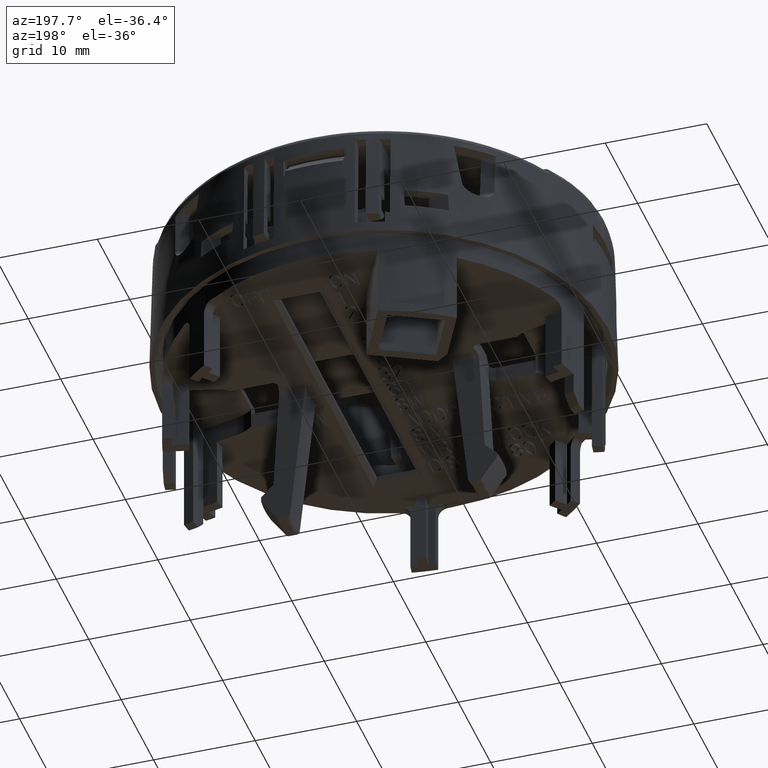
[diagram: clean part render]
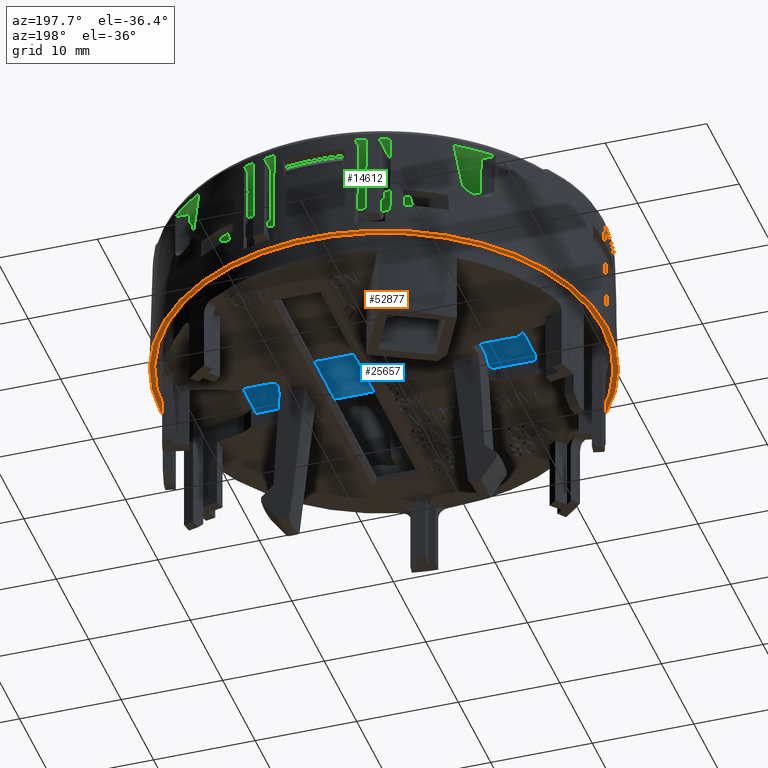
[diagram: same view with three faces highlighted in distinct colors, each labeled with its STEP entity id]
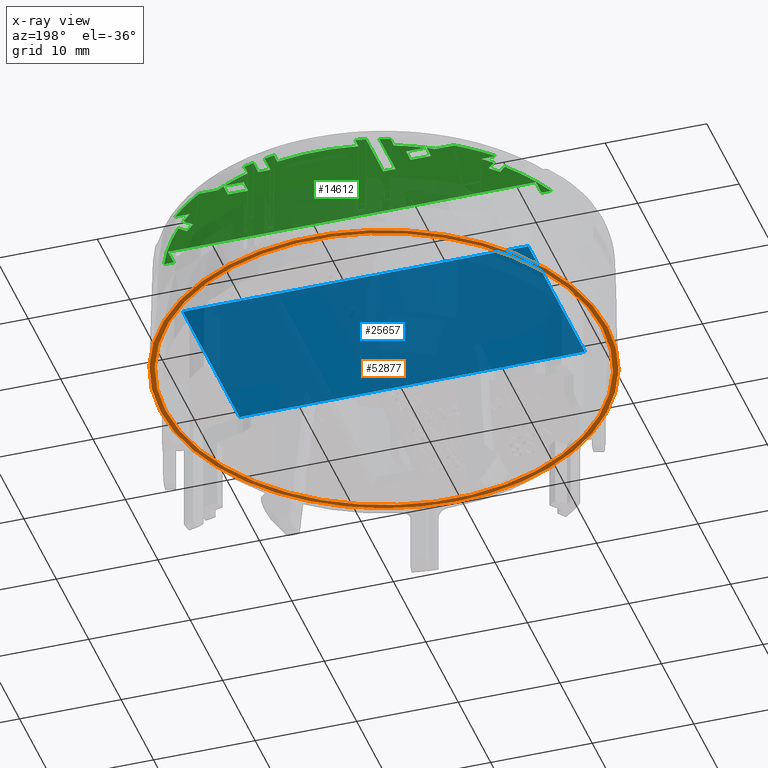
[diagram: x-ray of the same camera — body ghosted, the three highlighted faces saturated]
A machine part, auxiliary view with three faces highlighted in distinct colors.
The next image is the same camera in x-ray (body ghosted, the three faces saturated) — at least one of them is partly hidden behind the body in this view.
Their STEP definitions:

[orange] entity #52877 — the highlighted planar face has unit normal (0, -0, 1).
#286 = DIRECTION ( 'NONE',  ( 0.000000000000000000, 1.000000000000000000, 0.000000000000000000 ) ) ;
#492 = DIRECTION ( 'NONE',  ( -0.000000000000000000, -0.000000000000000000, 1.000000000000000000 ) ) ;
#3705 = DIRECTION ( 'NONE',  ( 0.000000000000000000, -1.000000000000000000, 0.000000000000000000 ) ) ;
#3961 = EDGE_CURVE ( 'NONE', #68883, #33228, #6949, .T. ) ;
#6657 = AXIS2_PLACEMENT_3D ( 'NONE', #70325, #10948, #286 ) ;
#6949 = CIRCLE ( 'NONE', #25093, 0.8661417322832716259 ) ;
#9859 = CARTESIAN_POINT ( 'NONE',  ( -0.08858267716535432601, -0.8661417322832716259, -0.1181102362205163486 ) ) ;
#10948 = DIRECTION ( 'NONE',  ( 0.000000000000000000, -0.000000000000000000, 1.000000000000000000 ) ) ;
#13177 = CARTESIAN_POINT ( 'NONE',  ( -0.08858267716535432601, 0.000000000000000000, -0.1181102362205163486 ) ) ;
#13220 = EDGE_CURVE ( 'NONE', #33228, #68167, #42900, .T. ) ;
#20904 = EDGE_LOOP ( 'NONE', ( #55807, #23041, #42482 ) ) ;
#21908 = VERTEX_POINT ( 'NONE', #28593 ) ;
#22014 = CARTESIAN_POINT ( 'NONE',  ( -0.08858267716535432601, 0.000000000000000000, -0.1181102362205163486 ) ) ;
#23041 = ORIENTED_EDGE ( 'NONE', *, *, #13220, .F. ) ;
#25093 = AXIS2_PLACEMENT_3D ( 'NONE', #13177, #492, #48840 ) ;
#27401 = AXIS2_PLACEMENT_3D ( 'NONE', #57027, #29309, #3705 ) ;
#28593 = CARTESIAN_POINT ( 'NONE',  ( 0.7578604931404487877, 5.770123354250118842E-17, -0.1181102362205771750 ) ) ;
#28746 = DIRECTION ( 'NONE',  ( 0.000000000000000000, -1.000000000000000000, 0.000000000000000000 ) ) ;
#29309 = DIRECTION ( 'NONE',  ( -0.000000000000000000, -0.000000000000000000, 1.000000000000000000 ) ) ;
#32152 = CARTESIAN_POINT ( 'NONE',  ( -0.08858267716535432601, 9.561467977824920278E-16, -0.1181102362205773693 ) ) ;
#32790 = ORIENTED_EDGE ( 'NONE', *, *, #59317, .T. ) ;
#33228 = VERTEX_POINT ( 'NONE', #9859 ) ;
#33619 = VERTEX_POINT ( 'NONE', #48143 ) ;
#36768 = CARTESIAN_POINT ( 'NONE',  ( -0.9547244094487539190, -1.325897125060816772E-16, -0.1181102362205141698 ) ) ;
#37472 = AXIS2_PLACEMENT_3D ( 'NONE', #64956, #37921, #59609 ) ;
#37614 = CIRCLE ( 'NONE', #27401, 0.8661417322835275323 ) ;
#37921 = DIRECTION ( 'NONE',  ( -1.008576273007973987E-17, -0.000000000000000000, 1.000000000000000000 ) ) ;
#39750 = EDGE_CURVE ( 'NONE', #68167, #68883, #37614, .T. ) ;
#39919 = CARTESIAN_POINT ( 'NONE',  ( 0.7775590551180452392, 1.660064624058092648E-12, -0.1181102362205163486 ) ) ;
#42235 = FACE_BOUND ( 'NONE', #51987, .T. ) ;
#42482 = ORIENTED_EDGE ( 'NONE', *, *, #3961, .F. ) ;
#42586 = FACE_OUTER_BOUND ( 'NONE', #20904, .T. ) ;
#42900 = CIRCLE ( 'NONE', #45125, 0.8661417322832716259 ) ;
#45125 = AXIS2_PLACEMENT_3D ( 'NONE', #22014, #49395, #28746 ) ;
#47921 = PLANE ( 'NONE',  #6657 ) ;
#48143 = CARTESIAN_POINT ( 'NONE',  ( -0.9350258474711574674, 6.200842129751810564E-17, -0.1181102362205771750 ) ) ;
#48840 = DIRECTION ( 'NONE',  ( 0.000000000000000000, -1.000000000000000000, 0.000000000000000000 ) ) ;
#49395 = DIRECTION ( 'NONE',  ( -0.000000000000000000, -0.000000000000000000, 1.000000000000000000 ) ) ;
#50865 = AXIS2_PLACEMENT_3D ( 'NONE', #32152, #53844, #52795 ) ;
#51987 = EDGE_LOOP ( 'NONE', ( #32790, #68512 ) ) ;
#52140 = EDGE_CURVE ( 'NONE', #21908, #33619, #59931, .T. ) ;
#52795 = DIRECTION ( 'NONE',  ( 1.000000000000000000, 0.000000000000000000, 0.000000000000000000 ) ) ;
#52877 = ADVANCED_FACE ( 'NONE', ( #42235, #42586 ), #47921, .F. ) ;
#53844 = DIRECTION ( 'NONE',  ( -1.008576273007973987E-17, -0.000000000000000000, 1.000000000000000000 ) ) ;
#55807 = ORIENTED_EDGE ( 'NONE', *, *, #39750, .F. ) ;
#57027 = CARTESIAN_POINT ( 'NONE',  ( -0.08858267716535432601, 0.000000000000000000, -0.1181102362205118245 ) ) ;
#59317 = EDGE_CURVE ( 'NONE', #33619, #21908, #67014, .T. ) ;
#59609 = DIRECTION ( 'NONE',  ( 1.000000000000000000, 8.881784197001251337E-16, 0.000000000000000000 ) ) ;
#59931 = CIRCLE ( 'NONE', #50865, 0.8464431703058030720 ) ;
#64956 = CARTESIAN_POINT ( 'NONE',  ( -0.08858267716535432601, 6.829619984160648185E-16, -0.1181102362205769807 ) ) ;
#67014 = CIRCLE ( 'NONE', #37472, 0.8464431703058030720 ) ;
#68167 = VERTEX_POINT ( 'NONE', #39919 ) ;
#68512 = ORIENTED_EDGE ( 'NONE', *, *, #52140, .T. ) ;
#68883 = VERTEX_POINT ( 'NONE', #36768 ) ;
#70325 = CARTESIAN_POINT ( 'NONE',  ( -0.08858267716535432601, 0.000000000000000000, -0.1181102362204724532 ) ) ;

[blue] entity #25657 — the highlighted planar face has unit normal (0, -0, 1).
#1650 = VECTOR ( 'NONE', #39094, 39.37007874015748143 ) ;
#2150 = DIRECTION ( 'NONE',  ( 0.000000000000000000, 1.000000000000000000, 0.000000000000000000 ) ) ;
#2349 = EDGE_LOOP ( 'NONE', ( #28782, #24630, #31079, #49423 ) ) ;
#7000 = LINE ( 'NONE', #22641, #7598 ) ;
#7598 = VECTOR ( 'NONE', #28663, 39.37007874015748143 ) ;
#10349 = DIRECTION ( 'NONE',  ( -0.000000000000000000, -1.000000000000000000, -0.000000000000000000 ) ) ;
#12139 = VECTOR ( 'NONE', #10349, 39.37007874015748143 ) ;
#13997 = CARTESIAN_POINT ( 'NONE',  ( -0.7578740157480314821, -0.3444881889763780070, 0.05364173228346456879 ) ) ;
#14197 = EDGE_CURVE ( 'NONE', #29340, #25083, #59388, .T. ) ;
#20486 = CARTESIAN_POINT ( 'NONE',  ( -0.7578740157480314821, -0.3444881889763780070, 0.05364173228346456879 ) ) ;
#22641 = CARTESIAN_POINT ( 'NONE',  ( 0.5807086614173228023, 0.3444881889763780070, 0.05364173228346456879 ) ) ;
#22945 = VERTEX_POINT ( 'NONE', #20486 ) ;
#24138 = FACE_OUTER_BOUND ( 'NONE', #2349, .T. ) ;
#24319 = CARTESIAN_POINT ( 'NONE',  ( 0.5807086614173228023, 0.3444881889763780070, 0.05364173228346456879 ) ) ;
#24630 = ORIENTED_EDGE ( 'NONE', *, *, #27646, .T. ) ;
#25083 = VERTEX_POINT ( 'NONE', #49849 ) ;
#25657 = ADVANCED_FACE ( 'NONE', ( #24138 ), #50831, .F. ) ;
#26119 = CARTESIAN_POINT ( 'NONE',  ( -0.7578740157480314821, 0.3444881889763780070, 0.05364173228346456879 ) ) ;
#27646 = EDGE_CURVE ( 'NONE', #59612, #29340, #7000, .T. ) ;
#28663 = DIRECTION ( 'NONE',  ( 1.000000000000000000, -0.000000000000000000, -0.000000000000000000 ) ) ;
#28782 = ORIENTED_EDGE ( 'NONE', *, *, #45836, .T. ) ;
#29340 = VERTEX_POINT ( 'NONE', #24319 ) ;
#31079 = ORIENTED_EDGE ( 'NONE', *, *, #14197, .T. ) ;
#32710 = CARTESIAN_POINT ( 'NONE',  ( 0.5807086614173228023, -0.3444881889763780070, 0.05364173228346456879 ) ) ;
#33755 = CARTESIAN_POINT ( 'NONE',  ( -0.7578740157480314821, 0.3444881889763780070, 0.05364173228346456879 ) ) ;
#39094 = DIRECTION ( 'NONE',  ( -0.000000000000000000, 1.000000000000000000, -0.000000000000000000 ) ) ;
#43252 = EDGE_CURVE ( 'NONE', #25083, #22945, #63046, .T. ) ;
#45836 = EDGE_CURVE ( 'NONE', #22945, #59612, #55786, .T. ) ;
#45839 = CARTESIAN_POINT ( 'NONE',  ( -0.08858267716535432601, 0.000000000000000000, 0.05364173228346456879 ) ) ;
#49339 = AXIS2_PLACEMENT_3D ( 'NONE', #45839, #67526, #2150 ) ;
#49423 = ORIENTED_EDGE ( 'NONE', *, *, #43252, .T. ) ;
#49849 = CARTESIAN_POINT ( 'NONE',  ( 0.5807086614173228023, -0.3444881889763780070, 0.05364173228346456879 ) ) ;
#50831 = PLANE ( 'NONE',  #49339 ) ;
#51369 = VECTOR ( 'NONE', #52363, 39.37007874015748143 ) ;
#52363 = DIRECTION ( 'NONE',  ( -1.000000000000000000, -0.000000000000000000, -0.000000000000000000 ) ) ;
#55786 = LINE ( 'NONE', #33755, #1650 ) ;
#59388 = LINE ( 'NONE', #32710, #12139 ) ;
#59612 = VERTEX_POINT ( 'NONE', #26119 ) ;
#63046 = LINE ( 'NONE', #13997, #51369 ) ;
#67526 = DIRECTION ( 'NONE',  ( 0.000000000000000000, -0.000000000000000000, 1.000000000000000000 ) ) ;

[green] entity #14612 — the highlighted planar face has unit normal (0, -0, 1).
#336 = EDGE_CURVE ( 'NONE', #6978, #31105, #15550, .T. ) ;
#395 = ORIENTED_EDGE ( 'NONE', *, *, #57176, .T. ) ;
#473 = EDGE_CURVE ( 'NONE', #21197, #48458, #21895, .T. ) ;
#518 = ORIENTED_EDGE ( 'NONE', *, *, #10137, .F. ) ;
#798 = DIRECTION ( 'NONE',  ( 0.7071067811915614509, -0.7071067811815334725, 0.000000000000000000 ) ) ;
#879 = AXIS2_PLACEMENT_3D ( 'NONE', #2805, #40120, #61802 ) ;
#949 = CARTESIAN_POINT ( 'NONE',  ( 0.1082677165354330728, 0.8320383715364940702, 0.3070866141732283561 ) ) ;
#1024 = DIRECTION ( 'NONE',  ( -0.7071067811865474617, -0.7071067811865474617, 0.000000000000000000 ) ) ;
#1190 = ORIENTED_EDGE ( 'NONE', *, *, #33298, .F. ) ;
#1203 = EDGE_CURVE ( 'NONE', #21194, #6806, #22801, .T. ) ;
#1441 = CARTESIAN_POINT ( 'NONE',  ( 0.5743812763314960490, 0.3188976377952755792, 0.3070866141732283561 ) ) ;
#1689 = EDGE_CURVE ( 'NONE', #6806, #65018, #8974, .T. ) ;
#1809 = CARTESIAN_POINT ( 'NONE',  ( -0.2854330708661417804, 0.000000000000000000, 0.3070866141732283561 ) ) ;
#1854 = CIRCLE ( 'NONE', #50653, 0.8550075609076555061 ) ;
#1857 = ORIENTED_EDGE ( 'NONE', *, *, #3274, .T. ) ;
#2064 = CARTESIAN_POINT ( 'NONE',  ( 0.1082677165354330728, 0.7598425196850394636, 0.3070866141732283561 ) ) ;
#2232 = LINE ( 'NONE', #45566, #27849 ) ;
#2496 = VECTOR ( 'NONE', #1024, 39.37007874015748854 ) ;
#2568 = DIRECTION ( 'NONE',  ( 0.000000000000000000, -1.000000000000000000, 0.000000000000000000 ) ) ;
#2805 = CARTESIAN_POINT ( 'NONE',  ( -0.08858267716535432601, 0.000000000000000000, 0.3070866141732283561 ) ) ;
#3012 = DIRECTION ( 'NONE',  ( 0.000000000000000000, -1.000000000000000000, 0.000000000000000000 ) ) ;
#3274 = EDGE_CURVE ( 'NONE', #13510, #9500, #51349, .T. ) ;
#3593 = CARTESIAN_POINT ( 'NONE',  ( 0.3051074005998295480, 0.7143615461695256297, 0.3070518012937701324 ) ) ;
#3649 = DIRECTION ( 'NONE',  ( 0.000000000000000000, -1.000000000000000000, 0.000000000000000000 ) ) ;
#4083 = VERTEX_POINT ( 'NONE', #43494 ) ;
#4294 = ORIENTED_EDGE ( 'NONE', *, *, #50623, .F. ) ;
#4383 = EDGE_CURVE ( 'NONE', #56048, #64487, #23734, .T. ) ;
#4543 = CARTESIAN_POINT ( 'NONE',  ( -0.6620629800173228885, 0.5233703734767716220, 0.3070866141732283561 ) ) ;
#4569 = CARTESIAN_POINT ( 'NONE',  ( -0.4035433070866141780, 0.7159383755826771445, 0.3070866141732283561 ) ) ;
#4617 = VERTEX_POINT ( 'NONE', #42536 ) ;
#4794 = VERTEX_POINT ( 'NONE', #949 ) ;
#4841 = VECTOR ( 'NONE', #12808, 39.37007874015748143 ) ;
#5346 = DIRECTION ( 'NONE',  ( -1.000000000000000000, 0.000000000000000000, 0.000000000000000000 ) ) ;
#5789 = VERTEX_POINT ( 'NONE', #51969 ) ;
#5927 = VERTEX_POINT ( 'NONE', #64741 ) ;
#5980 = DIRECTION ( 'NONE',  ( 0.000000000000000000, -1.000000000000000000, 0.000000000000000000 ) ) ;
#6022 = VERTEX_POINT ( 'NONE', #65783 ) ;
#6066 = CARTESIAN_POINT ( 'NONE',  ( -0.8011811023622047445, 0.3877952755905511584, 0.3070866141732283561 ) ) ;
#6369 = VERTEX_POINT ( 'NONE', #22913 ) ;
#6665 = CARTESIAN_POINT ( 'NONE',  ( -0.4035433070866141780, 0.6614931493807088003, 0.3070866141732283561 ) ) ;
#6678 = DIRECTION ( 'NONE',  ( -1.000000000000000000, 0.000000000000000000, 0.000000000000000000 ) ) ;
#6806 = VERTEX_POINT ( 'NONE', #17168 ) ;
#6978 = VERTEX_POINT ( 'NONE', #63353 ) ;
#7017 = VECTOR ( 'NONE', #31441, 39.37007874015748143 ) ;
#7230 = EDGE_CURVE ( 'NONE', #30412, #6978, #28779, .T. ) ;
#7481 = LINE ( 'NONE', #1441, #4841 ) ;
#7970 = CARTESIAN_POINT ( 'NONE',  ( 0.1082677165354330728, 0.7598425196850394636, 0.3070866141732283561 ) ) ;
#8246 = VECTOR ( 'NONE', #5346, 39.37007874015748143 ) ;
#8775 = CARTESIAN_POINT ( 'NONE',  ( 0.4767333044831567057, 0.5879288461062992521, 0.3070866141729688970 ) ) ;
#8926 = VECTOR ( 'NONE', #44501, 39.37007874015748143 ) ;
#8970 = DIRECTION ( 'NONE',  ( 0.000000000000000000, -1.000000000000000000, 0.000000000000000000 ) ) ;
#8974 = CIRCLE ( 'NONE', #31638, 0.8550075609076535077 ) ;
#8983 = ORIENTED_EDGE ( 'NONE', *, *, #10215, .T. ) ;
#9112 = VECTOR ( 'NONE', #55235, 39.37007874015748143 ) ;
#9500 = VERTEX_POINT ( 'NONE', #29337 ) ;
#9611 = DIRECTION ( 'NONE',  ( 0.000000000000000000, 1.000000000000000000, 0.000000000000000000 ) ) ;
#9612 = LINE ( 'NONE', #41958, #8246 ) ;
#9948 = ORIENTED_EDGE ( 'NONE', *, *, #39795, .F. ) ;
#10080 = ORIENTED_EDGE ( 'NONE', *, *, #56813, .T. ) ;
#10137 = EDGE_CURVE ( 'NONE', #34738, #28949, #20674, .T. ) ;
#10188 = CIRCLE ( 'NONE', #18155, 0.8156239863999251716 ) ;
#10215 = EDGE_CURVE ( 'NONE', #37238, #6022, #52821, .T. ) ;
#10696 = VERTEX_POINT ( 'NONE', #29683 ) ;
#10825 = AXIS2_PLACEMENT_3D ( 'NONE', #17720, #26705, #70108 ) ;
#10831 = EDGE_CURVE ( 'NONE', #61581, #47606, #25394, .T. ) ;
#11091 = CARTESIAN_POINT ( 'NONE',  ( -0.08858267716535432601, 0.000000000000000000, 0.3070866141732283561 ) ) ;
#11198 = LINE ( 'NONE', #32856, #20706 ) ;
#11275 = VERTEX_POINT ( 'NONE', #52686 ) ;
#11316 = EDGE_CURVE ( 'NONE', #4794, #26522, #1854, .T. ) ;
#11423 = DIRECTION ( 'NONE',  ( 0.000000000000000000, -1.000000000000000000, 0.000000000000000000 ) ) ;
#11648 = VERTEX_POINT ( 'NONE', #33348 ) ;
#11655 = DIRECTION ( 'NONE',  ( 0.000000000000000000, 0.000000000000000000, -1.000000000000000000 ) ) ;
#11686 = VECTOR ( 'NONE', #798, 39.37007874015748854 ) ;
#12324 = DIRECTION ( 'NONE',  ( 0.000000000000000000, -1.000000000000000000, 0.000000000000000000 ) ) ;
#12436 = LINE ( 'NONE', #28750, #57422 ) ;
#12808 = DIRECTION ( 'NONE',  ( 1.000000000000000000, -0.000000000000000000, -0.000000000000000000 ) ) ;
#12860 = DIRECTION ( 'NONE',  ( 0.000000000000000000, 0.000000000000000000, -1.000000000000000000 ) ) ;
#12952 = AXIS2_PLACEMENT_3D ( 'NONE', #27793, #49511, #53778 ) ;
#13148 = VERTEX_POINT ( 'NONE', #32696 ) ;
#13359 = ORIENTED_EDGE ( 'NONE', *, *, #34927, .F. ) ;
#13404 = CARTESIAN_POINT ( 'NONE',  ( 0.06889763779527559306, 0.8002764757199882784, 0.3070866141732283561 ) ) ;
#13510 = VERTEX_POINT ( 'NONE', #49940 ) ;
#13581 = LINE ( 'NONE', #56585, #21467 ) ;
#14247 = VECTOR ( 'NONE', #46229, 39.37007874015748143 ) ;
#14270 = AXIS2_PLACEMENT_3D ( 'NONE', #26711, #65477, #27070 ) ;
#14523 = AXIS2_PLACEMENT_3D ( 'NONE', #31330, #57672, #8970 ) ;
#14612 = ADVANCED_FACE ( 'NONE', ( #63940 ), #68934, .F. ) ;
#14630 = EDGE_CURVE ( 'NONE', #21196, #41487, #20560, .T. ) ;
#14668 = VERTEX_POINT ( 'NONE', #23364 ) ;
#14933 = CARTESIAN_POINT ( 'NONE',  ( -0.08858267716535432601, 0.000000000000000000, 0.3070866141732283561 ) ) ;
#14949 = CARTESIAN_POINT ( 'NONE',  ( -0.6954695996011811543, 0.4899637538929133562, 0.3070866141732283561 ) ) ;
#15222 = VECTOR ( 'NONE', #6678, 39.37007874015748143 ) ;
#15240 = EDGE_CURVE ( 'NONE', #61581, #38348, #26989, .T. ) ;
#15550 = LINE ( 'NONE', #37219, #59233 ) ;
#15563 = CARTESIAN_POINT ( 'NONE',  ( -0.08858267716535432601, 0.000000000000000000, 0.3070866141727094378 ) ) ;
#15676 = CARTESIAN_POINT ( 'NONE',  ( -0.08858267716535432601, 0.000000000000000000, 0.3070866141732283561 ) ) ;
#15783 = DIRECTION ( 'NONE',  ( 0.000000000000000000, -1.000000000000000000, 0.000000000000000000 ) ) ;
#16008 = VECTOR ( 'NONE', #54970, 39.37007874015748143 ) ;
#16011 = DIRECTION ( 'NONE',  ( 0.000000000000000000, -1.000000000000000000, 0.000000000000000000 ) ) ;
#16697 = EDGE_CURVE ( 'NONE', #31105, #4617, #13581, .T. ) ;
#16752 = VECTOR ( 'NONE', #44010, 39.37007874015748143 ) ;
#17042 = DIRECTION ( 'NONE',  ( 1.000000000000000000, -0.000000000000000000, -0.000000000000000000 ) ) ;
#17048 = CARTESIAN_POINT ( 'NONE',  ( -0.08858267716535432601, 0.7159383755826771445, 0.3070866141732283561 ) ) ;
#17155 = ORIENTED_EDGE ( 'NONE', *, *, #62306, .F. ) ;
#17168 = CARTESIAN_POINT ( 'NONE',  ( 0.1948818897637795422, 0.8066509582867519290, 0.3070866141732283561 ) ) ;
#17185 = ORIENTED_EDGE ( 'NONE', *, *, #4383, .F. ) ;
#17678 = VECTOR ( 'NONE', #2568, 39.37007874015748143 ) ;
#17720 = CARTESIAN_POINT ( 'NONE',  ( -0.08858267716535432601, 0.000000000000000000, 0.3070866141732283561 ) ) ;
#17878 = CIRCLE ( 'NONE', #25822, 0.8156239863999231732 ) ;
#18155 = AXIS2_PLACEMENT_3D ( 'NONE', #14933, #68278, #9611 ) ;
#18366 = CARTESIAN_POINT ( 'NONE',  ( 0.5126610520257882664, 0.5511337998156504714, 0.3070866141729688970 ) ) ;
#18426 = ORIENTED_EDGE ( 'NONE', *, *, #27250, .F. ) ;
#18551 = CARTESIAN_POINT ( 'NONE',  ( 0.5436414771293834880, 0.5153009857522181658, 0.3070866141732244148 ) ) ;
#18579 = DIRECTION ( 'NONE',  ( -1.000000000000000000, 0.000000000000000000, 0.000000000000000000 ) ) ;
#19331 = EDGE_CURVE ( 'NONE', #22919, #6369, #7481, .T. ) ;
#19376 = ORIENTED_EDGE ( 'NONE', *, *, #7230, .F. ) ;
#19726 = VERTEX_POINT ( 'NONE', #60703 ) ;
#19928 = EDGE_CURVE ( 'NONE', #13510, #52897, #48005, .T. ) ;
#19952 = EDGE_CURVE ( 'NONE', #41487, #11275, #49128, .T. ) ;
#20021 = VECTOR ( 'NONE', #44407, 39.37007874015748143 ) ;
#20068 = ORIENTED_EDGE ( 'NONE', *, *, #63656, .F. ) ;
#20283 = LINE ( 'NONE', #14949, #59708 ) ;
#20560 = LINE ( 'NONE', #42254, #16752 ) ;
#20646 = ORIENTED_EDGE ( 'NONE', *, *, #10831, .F. ) ;
#20674 = LINE ( 'NONE', #64427, #48271 ) ;
#20706 = VECTOR ( 'NONE', #33193, 39.37007874015748143 ) ;
#20749 = ORIENTED_EDGE ( 'NONE', *, *, #42360, .F. ) ;
#20852 = DIRECTION ( 'NONE',  ( -1.000000000000000000, 0.000000000000000000, 0.000000000000000000 ) ) ;
#20912 = CARTESIAN_POINT ( 'NONE',  ( -0.8011811023622047445, 0.000000000000000000, 0.3070866141732283561 ) ) ;
#20946 = CARTESIAN_POINT ( 'NONE',  ( -0.7208068314601810966, 0.5153009857521094750, 0.3070866141732283561 ) ) ;
#21006 = ORIENTED_EDGE ( 'NONE', *, *, #49905, .T. ) ;
#21018 = CARTESIAN_POINT ( 'NONE',  ( 0.1555118110236220763, 0.8194240721659450388, 0.3070866141732283561 ) ) ;
#21194 = VERTEX_POINT ( 'NONE', #25538 ) ;
#21196 = VERTEX_POINT ( 'NONE', #35861 ) ;
#21197 = VERTEX_POINT ( 'NONE', #47238 ) ;
#21233 = DIRECTION ( 'NONE',  ( 0.000000000000000000, 0.000000000000000000, -1.000000000000000000 ) ) ;
#21311 = DIRECTION ( 'NONE',  ( 1.000000000000000000, -0.000000000000000000, -0.000000000000000000 ) ) ;
#21416 = DIRECTION ( 'NONE',  ( 6.305238607280674317E-14, 1.000000000000000000, 0.000000000000000000 ) ) ;
#21467 = VECTOR ( 'NONE', #41977, 39.37007874015748143 ) ;
#21509 = EDGE_CURVE ( 'NONE', #14668, #49540, #22303, .T. ) ;
#21532 = VECTOR ( 'NONE', #12324, 39.37007874015748143 ) ;
#21751 = LINE ( 'NONE', #53415, #39435 ) ;
#21895 = LINE ( 'NONE', #27931, #53580 ) ;
#22303 = LINE ( 'NONE', #2064, #15222 ) ;
#22355 = CARTESIAN_POINT ( 'NONE',  ( -0.08858267716535432601, 0.5879288461062992521, 0.3070866141732283561 ) ) ;
#22414 = CIRCLE ( 'NONE', #879, 0.8156239863999251716 ) ;
#22801 = LINE ( 'NONE', #44165, #8926 ) ;
#22913 = CARTESIAN_POINT ( 'NONE',  ( 0.6621148543341811576, 0.3188976377952755792, 0.3070866141732283561 ) ) ;
#22919 = VERTEX_POINT ( 'NONE', #69208 ) ;
#23070 = DIRECTION ( 'NONE',  ( 1.000000000000000000, -0.000000000000000000, -0.000000000000000000 ) ) ;
#23364 = CARTESIAN_POINT ( 'NONE',  ( 0.1555118110236220763, 0.7598425196850394636, 0.3070866141732283561 ) ) ;
#23383 = ORIENTED_EDGE ( 'NONE', *, *, #19928, .F. ) ;
#23461 = CIRCLE ( 'NONE', #27962, 0.8550075609076555061 ) ;
#23734 = LINE ( 'NONE', #55724, #2496 ) ;
#23763 = ORIENTED_EDGE ( 'NONE', *, *, #58106, .F. ) ;
#23774 = LINE ( 'NONE', #22355, #46902 ) ;
#23968 = CARTESIAN_POINT ( 'NONE',  ( 0.6240157480314960647, 0.000000000000000000, 0.3070866141732283561 ) ) ;
#24672 = DIRECTION ( 'NONE',  ( -0.000000000000000000, -0.000000000000000000, 1.000000000000000000 ) ) ;
#24737 = ORIENTED_EDGE ( 'NONE', *, *, #14630, .F. ) ;
#25221 = VERTEX_POINT ( 'NONE', #18551 ) ;
#25257 = DIRECTION ( 'NONE',  ( 0.000000000000000000, -1.000000000000000000, 0.000000000000000000 ) ) ;
#25394 = LINE ( 'NONE', #52424, #39230 ) ;
#25538 = CARTESIAN_POINT ( 'NONE',  ( 0.1948818897637795422, 0.7647812278596949342, 0.3070866141732283561 ) ) ;
#25541 = DIRECTION ( 'NONE',  ( 0.000000000000000000, 1.000000000000000000, 0.000000000000000000 ) ) ;
#25761 = LINE ( 'NONE', #47466, #7017 ) ;
#25822 = AXIS2_PLACEMENT_3D ( 'NONE', #52285, #12860, #25257 ) ;
#25975 = CARTESIAN_POINT ( 'NONE',  ( 0.5322052102209487989, 0.5879288461061676907, 0.3070866141732283561 ) ) ;
#26352 = VERTEX_POINT ( 'NONE', #67630 ) ;
#26475 = CARTESIAN_POINT ( 'NONE',  ( 0.3021534608601755822, 0.7159383755825630136, 0.3070866141732283561 ) ) ;
#26522 = VERTEX_POINT ( 'NONE', #67193 ) ;
#26634 = ORIENTED_EDGE ( 'NONE', *, *, #65438, .F. ) ;
#26705 = DIRECTION ( 'NONE',  ( 0.000000000000000000, 0.000000000000000000, -1.000000000000000000 ) ) ;
#26711 = CARTESIAN_POINT ( 'NONE',  ( -0.08858267716535432601, 0.000000000000000000, 0.3070866141732322419 ) ) ;
#26989 = CIRCLE ( 'NONE', #14523, 0.8156239863999251716 ) ;
#27070 = DIRECTION ( 'NONE',  ( 0.000000000000000000, -1.000000000000000000, 0.000000000000000000 ) ) ;
#27086 = DIRECTION ( 'NONE',  ( -0.000000000000000000, -0.000000000000000000, -1.000000000000000000 ) ) ;
#27164 = CARTESIAN_POINT ( 'NONE',  ( 0.4848976256866142087, 0.5233703734767716220, 0.3070866141732283561 ) ) ;
#27250 = EDGE_CURVE ( 'NONE', #19726, #60627, #56122, .T. ) ;
#27548 = CARTESIAN_POINT ( 'NONE',  ( 0.06889763779527559306, 0.000000000000000000, 0.3070866141732283561 ) ) ;
#27555 = ORIENTED_EDGE ( 'NONE', *, *, #45365, .T. ) ;
#27746 = VERTEX_POINT ( 'NONE', #18366 ) ;
#27758 = ORIENTED_EDGE ( 'NONE', *, *, #15240, .T. ) ;
#27793 = CARTESIAN_POINT ( 'NONE',  ( -0.08858267716535432601, 0.000000000000000000, 0.3070866141732283561 ) ) ;
#27849 = VECTOR ( 'NONE', #66916, 39.37007874015748854 ) ;
#27931 = CARTESIAN_POINT ( 'NONE',  ( 0.5183042452704724745, 0.4899637538929133562, 0.3070866141732283561 ) ) ;
#27962 = AXIS2_PLACEMENT_3D ( 'NONE', #52389, #47773, #15783 ) ;
#28033 = EDGE_CURVE ( 'NONE', #48458, #27746, #2232, .T. ) ;
#28098 = AXIS2_PLACEMENT_3D ( 'NONE', #42607, #52566, #25541 ) ;
#28208 = EDGE_CURVE ( 'NONE', #19726, #5789, #68301, .T. ) ;
#28466 = EDGE_CURVE ( 'NONE', #13148, #11648, #12436, .T. ) ;
#28750 = CARTESIAN_POINT ( 'NONE',  ( -0.08858267716535432601, 0.3188976377952755792, 0.3070866141732283561 ) ) ;
#28779 = LINE ( 'NONE', #1809, #14247 ) ;
#28949 = VERTEX_POINT ( 'NONE', #67440 ) ;
#29337 = CARTESIAN_POINT ( 'NONE',  ( -0.3720472440944881942, 0.7647812278596949342, 0.3070866141732244148 ) ) ;
#29476 = EDGE_CURVE ( 'NONE', #51112, #49021, #23461, .T. ) ;
#29661 = ORIENTED_EDGE ( 'NONE', *, *, #29476, .F. ) ;
#29683 = CARTESIAN_POINT ( 'NONE',  ( 0.6240157480314960647, 0.3877952755905511584, 0.3070866141732283561 ) ) ;
#29708 = CARTESIAN_POINT ( 'NONE',  ( 0.4053535699739992393, 0.6979003603460629535, 0.3070866141732283561 ) ) ;
#30412 = VERTEX_POINT ( 'NONE', #60267 ) ;
#30442 = ORIENTED_EDGE ( 'NONE', *, *, #28208, .T. ) ;
#31105 = VERTEX_POINT ( 'NONE', #58431 ) ;
#31330 = CARTESIAN_POINT ( 'NONE',  ( -0.08858267716535432601, 0.000000000000000000, 0.3070866141732283561 ) ) ;
#31441 = DIRECTION ( 'NONE',  ( 1.000000000000000000, -0.000000000000000000, -0.000000000000000000 ) ) ;
#31638 = AXIS2_PLACEMENT_3D ( 'NONE', #45830, #51164, #61471 ) ;
#31914 = EDGE_CURVE ( 'NONE', #11648, #40311, #42978, .T. ) ;
#32127 = CIRCLE ( 'NONE', #65073, 0.8156239863999251716 ) ;
#32426 = EDGE_CURVE ( 'NONE', #26522, #38348, #38942, .T. ) ;
#32696 = CARTESIAN_POINT ( 'NONE',  ( -0.8392802086648898374, 0.3188976377952755792, 0.3070866141732283561 ) ) ;
#32856 = CARTESIAN_POINT ( 'NONE',  ( -0.08858267716535432601, 0.6614931493807088003, 0.3070866141732283561 ) ) ;
#33193 = DIRECTION ( 'NONE',  ( -1.000000000000000000, 0.000000000000000000, 0.000000000000000000 ) ) ;
#33285 = CARTESIAN_POINT ( 'NONE',  ( 0.1082677165354330728, 0.000000000000000000, 0.3070866141732283561 ) ) ;
#33298 = EDGE_CURVE ( 'NONE', #65018, #14668, #60281, .T. ) ;
#33348 = CARTESIAN_POINT ( 'NONE',  ( -0.8011811023622047445, 0.3188976377952755792, 0.3070866141732283561 ) ) ;
#33422 = CARTESIAN_POINT ( 'NONE',  ( -0.4822727204222048147, 0.7143615803073898318, 0.3070512458057823024 ) ) ;
#33450 = CARTESIAN_POINT ( 'NONE',  ( -0.6898264063566929005, 0.5511337998157480600, 0.3070866141732283561 ) ) ;
#33989 = CARTESIAN_POINT ( 'NONE',  ( -0.5825189243047024235, 0.6979003603460550709, 0.3070866141732283561 ) ) ;
#34155 = LINE ( 'NONE', #33450, #11686 ) ;
#34246 = EDGE_CURVE ( 'NONE', #49540, #4794, #66358, .T. ) ;
#34738 = VERTEX_POINT ( 'NONE', #3593 ) ;
#34927 = EDGE_CURVE ( 'NONE', #64487, #69856, #20283, .T. ) ;
#35256 = VERTEX_POINT ( 'NONE', #6665 ) ;
#35861 = CARTESIAN_POINT ( 'NONE',  ( -0.5106935325337448317, 0.6979003603460629535, 0.3070866141732283561 ) ) ;
#36621 = DIRECTION ( 'NONE',  ( -0.7071067811810549664, 0.7071067811920400681, 0.000000000000000000 ) ) ;
#36624 = DIRECTION ( 'NONE',  ( -0.000000000000000000, -0.000000000000000000, 1.000000000000000000 ) ) ;
#37219 = CARTESIAN_POINT ( 'NONE',  ( -0.2854330708661417804, 0.6240157480314960647, 0.3070866141732283561 ) ) ;
#37238 = VERTEX_POINT ( 'NONE', #55882 ) ;
#37722 = ORIENTED_EDGE ( 'NONE', *, *, #19331, .F. ) ;
#37756 = AXIS2_PLACEMENT_3D ( 'NONE', #15676, #36624, #16011 ) ;
#37821 = ORIENTED_EDGE ( 'NONE', *, *, #1689, .F. ) ;
#38069 = ORIENTED_EDGE ( 'NONE', *, *, #11316, .F. ) ;
#38088 = DIRECTION ( 'NONE',  ( -0.000000000000000000, -0.000000000000000000, 1.000000000000000000 ) ) ;
#38251 = DIRECTION ( 'NONE',  ( -0.000000000000000000, -1.000000000000000000, -0.000000000000000000 ) ) ;
#38348 = VERTEX_POINT ( 'NONE', #13404 ) ;
#38942 = LINE ( 'NONE', #27548, #39269 ) ;
#39230 = VECTOR ( 'NONE', #63459, 39.37007874015748143 ) ;
#39269 = VECTOR ( 'NONE', #38251, 39.37007874015748143 ) ;
#39332 = CARTESIAN_POINT ( 'NONE',  ( -0.4822834645669291653, 0.7462782343720472111, 0.3070866141732283561 ) ) ;
#39435 = VECTOR ( 'NONE', #42401, 39.37007874015748143 ) ;
#39602 = CARTESIAN_POINT ( 'NONE',  ( -0.4035433070866141780, 0.7476568279610236178, 0.3070866141732283561 ) ) ;
#39795 = EDGE_CURVE ( 'NONE', #10696, #22919, #52057, .T. ) ;
#40044 = VECTOR ( 'NONE', #65413, 39.37007874015748143 ) ;
#40120 = DIRECTION ( 'NONE',  ( 0.000000000000000000, 0.000000000000000000, -1.000000000000000000 ) ) ;
#40293 = VECTOR ( 'NONE', #21311, 39.37007874015748143 ) ;
#40311 = VERTEX_POINT ( 'NONE', #6066 ) ;
#40394 = LINE ( 'NONE', #50711, #16008 ) ;
#40449 = ORIENTED_EDGE ( 'NONE', *, *, #473, .F. ) ;
#41487 = VERTEX_POINT ( 'NONE', #33989 ) ;
#41958 = CARTESIAN_POINT ( 'NONE',  ( -0.08858267716535432601, 0.6614931493807088003, 0.3070866141732283561 ) ) ;
#41977 = DIRECTION ( 'NONE',  ( 0.000000000000000000, 1.000000000000000000, 0.000000000000000000 ) ) ;
#42113 = AXIS2_PLACEMENT_3D ( 'NONE', #54660, #11655, #5980 ) ;
#42159 = EDGE_CURVE ( 'NONE', #21196, #68571, #32127, .T. ) ;
#42254 = CARTESIAN_POINT ( 'NONE',  ( -0.08858267716535432601, 0.6979003603460629535, 0.3070866141732283561 ) ) ;
#42360 = EDGE_CURVE ( 'NONE', #37238, #56048, #34155, .T. ) ;
#42401 = DIRECTION ( 'NONE',  ( -0.7071067811810529680, -0.7071067811920420665, 0.000000000000000000 ) ) ;
#42536 = CARTESIAN_POINT ( 'NONE',  ( -0.3326771653543306728, 0.8194240721659450388, 0.3070866141732283561 ) ) ;
#42607 = CARTESIAN_POINT ( 'NONE',  ( -0.08858267716535432601, 0.000000000000000000, 0.3070866141732283561 ) ) ;
#42978 = LINE ( 'NONE', #20912, #45860 ) ;
#43055 = EDGE_CURVE ( 'NONE', #35256, #4083, #11198, .T. ) ;
#43494 = CARTESIAN_POINT ( 'NONE',  ( -0.4822834645669291653, 0.6614931493807088003, 0.3070866141732283561 ) ) ;
#43593 = DIRECTION ( 'NONE',  ( -0.7071067811865474617, 0.7071067811865474617, 0.000000000000000000 ) ) ;
#43598 = CIRCLE ( 'NONE', #12952, 0.8156239863999251716 ) ;
#43710 = CARTESIAN_POINT ( 'NONE',  ( -0.08858267716535432601, 0.7159383755826771445, 0.3070866141732283561 ) ) ;
#44010 = DIRECTION ( 'NONE',  ( -1.000000000000000000, 0.000000000000000000, 0.000000000000000000 ) ) ;
#44165 = CARTESIAN_POINT ( 'NONE',  ( 0.1948818897637795422, 0.000000000000000000, 0.3070866141732283561 ) ) ;
#44407 = DIRECTION ( 'NONE',  ( 1.000000000000000000, -0.000000000000000000, -0.000000000000000000 ) ) ;
#44480 = ORIENTED_EDGE ( 'NONE', *, *, #66219, .F. ) ;
#44501 = DIRECTION ( 'NONE',  ( 0.000000000000000000, 1.000000000000000000, 0.000000000000000000 ) ) ;
#45027 = ORIENTED_EDGE ( 'NONE', *, *, #57395, .F. ) ;
#45259 = LINE ( 'NONE', #57313, #63094 ) ;
#45365 = EDGE_CURVE ( 'NONE', #21194, #60627, #43598, .T. ) ;
#45566 = CARTESIAN_POINT ( 'NONE',  ( 0.4848976256866142087, 0.5233703734767716220, 0.3070866141732283561 ) ) ;
#45666 = DIRECTION ( 'NONE',  ( -0.000000000000000000, -1.000000000000000000, -0.000000000000000000 ) ) ;
#45830 = CARTESIAN_POINT ( 'NONE',  ( -0.08858267716535432601, 0.000000000000000000, 0.3070866141732283561 ) ) ;
#45860 = VECTOR ( 'NONE', #52571, 39.37007874015748143 ) ;
#46229 = DIRECTION ( 'NONE',  ( -0.000000000000000000, -1.000000000000000000, -0.000000000000000000 ) ) ;
#46318 = ORIENTED_EDGE ( 'NONE', *, *, #31914, .F. ) ;
#46902 = VECTOR ( 'NONE', #17042, 39.37007874015748143 ) ;
#47238 = CARTESIAN_POINT ( 'NONE',  ( 0.5183042452704063052, 0.4899637538929787484, 0.3070866141732283561 ) ) ;
#47466 = CARTESIAN_POINT ( 'NONE',  ( -0.08858267716535432601, 0.5879288461062992521, 0.3070866141732283561 ) ) ;
#47606 = VERTEX_POINT ( 'NONE', #51632 ) ;
#47613 = EDGE_CURVE ( 'NONE', #49021, #26352, #45259, .T. ) ;
#47773 = DIRECTION ( 'NONE',  ( -0.000000000000000000, -0.000000000000000000, 1.000000000000000000 ) ) ;
#48005 = LINE ( 'NONE', #43710, #40044 ) ;
#48248 = ORIENTED_EDGE ( 'NONE', *, *, #19952, .F. ) ;
#48271 = VECTOR ( 'NONE', #3649, 39.37007874015748143 ) ;
#48458 = VERTEX_POINT ( 'NONE', #27164 ) ;
#48692 = CARTESIAN_POINT ( 'NONE',  ( -0.08858267716535432601, 0.3877952755905511584, 0.3070866141732283561 ) ) ;
#48990 = VECTOR ( 'NONE', #45666, 39.37007874015748143 ) ;
#49021 = VERTEX_POINT ( 'NONE', #29708 ) ;
#49128 = CIRCLE ( 'NONE', #37756, 0.8550075609076555061 ) ;
#49511 = DIRECTION ( 'NONE',  ( 0.000000000000000000, 0.000000000000000000, -1.000000000000000000 ) ) ;
#49540 = VERTEX_POINT ( 'NONE', #7970 ) ;
#49582 = CIRCLE ( 'NONE', #51871, 0.8550075609076555061 ) ;
#49610 = EDGE_CURVE ( 'NONE', #25221, #21197, #21751, .T. ) ;
#49905 = EDGE_CURVE ( 'NONE', #13148, #69856, #17878, .T. ) ;
#49940 = CARTESIAN_POINT ( 'NONE',  ( -0.4793188151909298922, 0.7159383755825372564, 0.3070866141732244148 ) ) ;
#50623 = EDGE_CURVE ( 'NONE', #47606, #30412, #49582, .T. ) ;
#50653 = AXIS2_PLACEMENT_3D ( 'NONE', #11091, #38088, #11423 ) ;
#50711 = CARTESIAN_POINT ( 'NONE',  ( -0.3720472440944881942, 0.000000000000000000, 0.3070866141732283561 ) ) ;
#50924 = ORIENTED_EDGE ( 'NONE', *, *, #336, .F. ) ;
#51112 = VERTEX_POINT ( 'NONE', #25975 ) ;
#51164 = DIRECTION ( 'NONE',  ( -0.000000000000000000, -0.000000000000000000, 1.000000000000000000 ) ) ;
#51249 = CARTESIAN_POINT ( 'NONE',  ( 0.2263779527559055260, 0.7476568279610236178, 0.3070866141732283561 ) ) ;
#51329 = CARTESIAN_POINT ( 'NONE',  ( -0.08858267716535432601, 0.000000000000000000, 0.3070866141732283561 ) ) ;
#51349 = CIRCLE ( 'NONE', #42113, 0.8156239863999251716 ) ;
#51597 = EDGE_CURVE ( 'NONE', #25221, #6369, #22414, .T. ) ;
#51632 = CARTESIAN_POINT ( 'NONE',  ( -0.2460629921259842590, 0.8403796044700019285, 0.3070866141732283561 ) ) ;
#51871 = AXIS2_PLACEMENT_3D ( 'NONE', #51329, #24672, #3012 ) ;
#51969 = CARTESIAN_POINT ( 'NONE',  ( 0.2263779527559055260, 0.6614931493807088003, 0.3070866141732283561 ) ) ;
#52057 = LINE ( 'NONE', #23968, #48990 ) ;
#52285 = CARTESIAN_POINT ( 'NONE',  ( -0.08858267716535432601, 0.000000000000000000, 0.3070866141732283561 ) ) ;
#52389 = CARTESIAN_POINT ( 'NONE',  ( -0.08858267716535432601, 0.000000000000000000, 0.3070866141732283561 ) ) ;
#52424 = CARTESIAN_POINT ( 'NONE',  ( -0.2460629921259842590, 0.000000000000000000, 0.3070866141732283561 ) ) ;
#52566 = DIRECTION ( 'NONE',  ( 0.000000000000000000, -0.000000000000000000, 1.000000000000000000 ) ) ;
#52571 = DIRECTION ( 'NONE',  ( 0.000000000000000000, 1.000000000000000000, 0.000000000000000000 ) ) ;
#52686 = CARTESIAN_POINT ( 'NONE',  ( -0.7093705645516574787, 0.5879288461061676907, 0.3070866141732283561 ) ) ;
#52821 = CIRCLE ( 'NONE', #10825, 0.8156239863999251716 ) ;
#52897 = VERTEX_POINT ( 'NONE', #4569 ) ;
#53200 = VERTEX_POINT ( 'NONE', #8775 ) ;
#53415 = CARTESIAN_POINT ( 'NONE',  ( 0.5436414771295275949, 0.5153009857523622728, 0.3070866141732283561 ) ) ;
#53580 = VECTOR ( 'NONE', #43593, 39.37007874015748854 ) ;
#53778 = DIRECTION ( 'NONE',  ( 0.000000000000000000, -1.000000000000000000, 0.000000000000000000 ) ) ;
#54166 = ORIENTED_EDGE ( 'NONE', *, *, #21509, .F. ) ;
#54265 = DIRECTION ( 'NONE',  ( 0.000000000000000000, -1.000000000000000000, 0.000000000000000000 ) ) ;
#54488 = ORIENTED_EDGE ( 'NONE', *, *, #49610, .F. ) ;
#54579 = ORIENTED_EDGE ( 'NONE', *, *, #43055, .F. ) ;
#54660 = CARTESIAN_POINT ( 'NONE',  ( -0.08858267716535432601, 0.000000000000000000, 0.3070866141732208621 ) ) ;
#54970 = DIRECTION ( 'NONE',  ( -0.000000000000000000, -1.000000000000000000, -0.000000000000000000 ) ) ;
#55235 = DIRECTION ( 'NONE',  ( 0.000000000000000000, -1.000000000000000000, 0.000000000000000000 ) ) ;
#55303 = CARTESIAN_POINT ( 'NONE',  ( 0.1555118110236220763, 0.000000000000000000, 0.3070866141732283561 ) ) ;
#55582 = CIRCLE ( 'NONE', #66974, 0.8156239863999369399 ) ;
#55586 = LINE ( 'NONE', #39602, #9112 ) ;
#55724 = CARTESIAN_POINT ( 'NONE',  ( -0.6620629800173228885, 0.5233703734767716220, 0.3070866141732283561 ) ) ;
#55882 = CARTESIAN_POINT ( 'NONE',  ( -0.6898264063564429893, 0.5511337998156953244, 0.3070866141732283561 ) ) ;
#56048 = VERTEX_POINT ( 'NONE', #4543 ) ;
#56122 = LINE ( 'NONE', #17048, #20021 ) ;
#56387 = LINE ( 'NONE', #39332, #21532 ) ;
#56466 = ORIENTED_EDGE ( 'NONE', *, *, #28466, .F. ) ;
#56585 = CARTESIAN_POINT ( 'NONE',  ( -0.3326771653543306728, 0.000000000000000000, 0.3070866141732283561 ) ) ;
#56813 = EDGE_CURVE ( 'NONE', #34738, #26352, #10188, .T. ) ;
#57176 = EDGE_CURVE ( 'NONE', #53200, #27746, #55582, .T. ) ;
#57296 = EDGE_CURVE ( 'NONE', #68571, #4083, #56387, .T. ) ;
#57313 = CARTESIAN_POINT ( 'NONE',  ( -0.08858267716535432601, 0.6979003603460629535, 0.3070866141732283561 ) ) ;
#57395 = EDGE_CURVE ( 'NONE', #52897, #35256, #55586, .T. ) ;
#57422 = VECTOR ( 'NONE', #23070, 39.37007874015748143 ) ;
#57672 = DIRECTION ( 'NONE',  ( 0.000000000000000000, 0.000000000000000000, -1.000000000000000000 ) ) ;
#58106 = EDGE_CURVE ( 'NONE', #5927, #9500, #40394, .T. ) ;
#58431 = CARTESIAN_POINT ( 'NONE',  ( -0.3326771653543306728, 0.6240157480314960647, 0.3070866141732283561 ) ) ;
#59112 = CARTESIAN_POINT ( 'NONE',  ( -0.08858267716535432601, 0.000000000000000000, 0.3070866141732283561 ) ) ;
#59233 = VECTOR ( 'NONE', #20852, 39.37007874015748143 ) ;
#59263 = DIRECTION ( 'NONE',  ( 0.000000000000000000, -1.000000000000000000, 0.000000000000000000 ) ) ;
#59708 = VECTOR ( 'NONE', #36621, 39.37007874015748143 ) ;
#59804 = CARTESIAN_POINT ( 'NONE',  ( -0.6954695996011811543, 0.4899637538929133562, 0.3070866141732283561 ) ) ;
#59980 = DIRECTION ( 'NONE',  ( 0.000000000000000000, 1.000000000000000000, 0.000000000000000000 ) ) ;
#60267 = CARTESIAN_POINT ( 'NONE',  ( -0.2854330708661417804, 0.8320383715364940702, 0.3070866141732283561 ) ) ;
#60281 = LINE ( 'NONE', #55303, #67765 ) ;
#60627 = VERTEX_POINT ( 'NONE', #26475 ) ;
#60703 = CARTESIAN_POINT ( 'NONE',  ( 0.2263779527559055260, 0.7159383755826771445, 0.3070866141732283561 ) ) ;
#60916 = CARTESIAN_POINT ( 'NONE',  ( -0.2460629921259842590, 0.8002764757199882784, 0.3070866141732283561 ) ) ;
#61071 = ORIENTED_EDGE ( 'NONE', *, *, #47613, .F. ) ;
#61455 = EDGE_CURVE ( 'NONE', #11275, #6022, #25761, .T. ) ;
#61471 = DIRECTION ( 'NONE',  ( -2.663927629247694745E-14, -1.000000000000000000, 0.000000000000000000 ) ) ;
#61581 = VERTEX_POINT ( 'NONE', #60916 ) ;
#61802 = DIRECTION ( 'NONE',  ( 0.000000000000000000, -1.000000000000000000, 0.000000000000000000 ) ) ;
#62039 = EDGE_LOOP ( 'NONE', ( #23383, #1857, #23763, #44480, #68853, #50924, #19376, #4294, #20646, #27758, #69759, #38069, #62219, #54166, #1190, #37821, #63874, #27555, #18426, #30442, #17155, #518, #10080, #61071, #29661, #20068, #395, #65896, #40449, #54488, #68862, #37722, #9948, #26634, #46318, #56466, #21006, #13359, #17185, #20749, #8983, #67400, #48248, #24737, #63018, #63694, #54579, #45027 ) ) ;
#62219 = ORIENTED_EDGE ( 'NONE', *, *, #34246, .F. ) ;
#62306 = EDGE_CURVE ( 'NONE', #28949, #5789, #9612, .T. ) ;
#63018 = ORIENTED_EDGE ( 'NONE', *, *, #42159, .T. ) ;
#63094 = VECTOR ( 'NONE', #18579, 39.37007874015748143 ) ;
#63353 = CARTESIAN_POINT ( 'NONE',  ( -0.2854330708661417804, 0.6240157480314960647, 0.3070866141732283561 ) ) ;
#63459 = DIRECTION ( 'NONE',  ( 0.000000000000000000, 1.000000000000000000, 0.000000000000000000 ) ) ;
#63656 = EDGE_CURVE ( 'NONE', #53200, #51112, #23774, .T. ) ;
#63694 = ORIENTED_EDGE ( 'NONE', *, *, #57296, .T. ) ;
#63874 = ORIENTED_EDGE ( 'NONE', *, *, #1203, .F. ) ;
#63940 = FACE_OUTER_BOUND ( 'NONE', #62039, .T. ) ;
#64427 = CARTESIAN_POINT ( 'NONE',  ( 0.3051181102362204856, 0.7462782343720472111, 0.3070866141732283561 ) ) ;
#64487 = VERTEX_POINT ( 'NONE', #59804 ) ;
#64741 = CARTESIAN_POINT ( 'NONE',  ( -0.3720472440944881942, 0.8066509582867519290, 0.3070866141732322419 ) ) ;
#65018 = VERTEX_POINT ( 'NONE', #21018 ) ;
#65073 = AXIS2_PLACEMENT_3D ( 'NONE', #59112, #27086, #21416 ) ;
#65413 = DIRECTION ( 'NONE',  ( 1.000000000000000000, -0.000000000000000000, -0.000000000000000000 ) ) ;
#65438 = EDGE_CURVE ( 'NONE', #40311, #10696, #70024, .T. ) ;
#65477 = DIRECTION ( 'NONE',  ( -0.000000000000000000, -0.000000000000000000, 1.000000000000000000 ) ) ;
#65783 = CARTESIAN_POINT ( 'NONE',  ( -0.6538986588138405720, 0.5879288461061676907, 0.3070866141732283561 ) ) ;
#65896 = ORIENTED_EDGE ( 'NONE', *, *, #28033, .F. ) ;
#66219 = EDGE_CURVE ( 'NONE', #4617, #5927, #67610, .T. ) ;
#66358 = LINE ( 'NONE', #33285, #69936 ) ;
#66916 = DIRECTION ( 'NONE',  ( 0.7071067811915604517, 0.7071067811815344717, 0.000000000000000000 ) ) ;
#66974 = AXIS2_PLACEMENT_3D ( 'NONE', #15563, #21233, #59263 ) ;
#67193 = CARTESIAN_POINT ( 'NONE',  ( 0.06889763779527559306, 0.8403796044700019285, 0.3070866141732283561 ) ) ;
#67400 = ORIENTED_EDGE ( 'NONE', *, *, #61455, .F. ) ;
#67440 = CARTESIAN_POINT ( 'NONE',  ( 0.3051181102362204856, 0.6614931493807088003, 0.3070866141732283561 ) ) ;
#67610 = CIRCLE ( 'NONE', #14270, 0.8550075609076535077 ) ;
#67630 = CARTESIAN_POINT ( 'NONE',  ( 0.3335281782031350728, 0.6979003603460629535, 0.3070866141732283561 ) ) ;
#67765 = VECTOR ( 'NONE', #54265, 39.37007874015748143 ) ;
#68278 = DIRECTION ( 'NONE',  ( -0.000000000000000000, -0.000000000000000000, -1.000000000000000000 ) ) ;
#68301 = LINE ( 'NONE', #51249, #17678 ) ;
#68571 = VERTEX_POINT ( 'NONE', #33422 ) ;
#68853 = ORIENTED_EDGE ( 'NONE', *, *, #16697, .F. ) ;
#68862 = ORIENTED_EDGE ( 'NONE', *, *, #51597, .T. ) ;
#68934 = PLANE ( 'NONE',  #28098 ) ;
#69208 = CARTESIAN_POINT ( 'NONE',  ( 0.6240157480314960647, 0.3188976377952755792, 0.3070866141732283561 ) ) ;
#69759 = ORIENTED_EDGE ( 'NONE', *, *, #32426, .F. ) ;
#69856 = VERTEX_POINT ( 'NONE', #20946 ) ;
#69936 = VECTOR ( 'NONE', #59980, 39.37007874015748143 ) ;
#70024 = LINE ( 'NONE', #48692, #40293 ) ;
#70108 = DIRECTION ( 'NONE',  ( 0.000000000000000000, -1.000000000000000000, 0.000000000000000000 ) ) ;